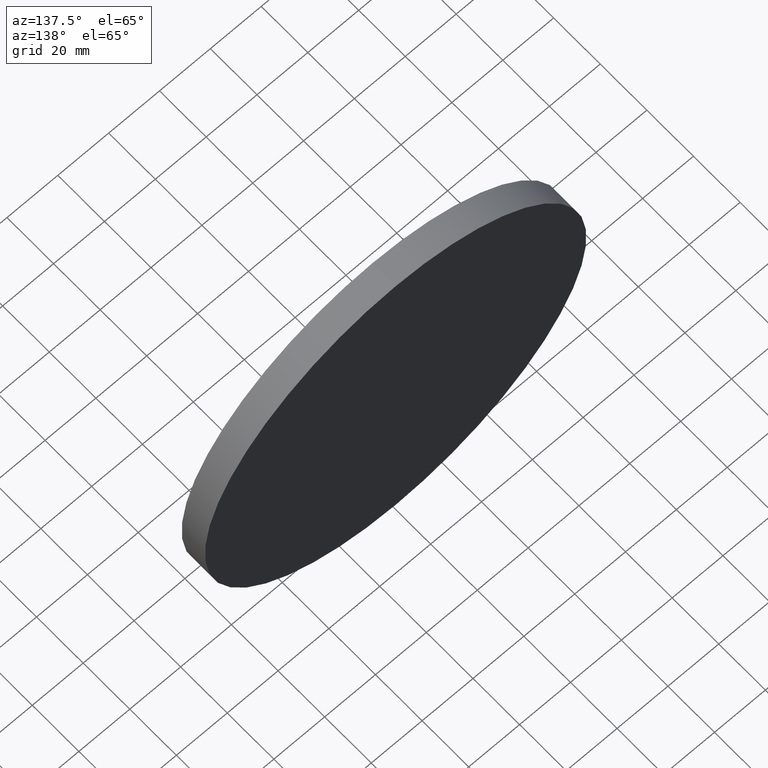
[diagram: clean part render]
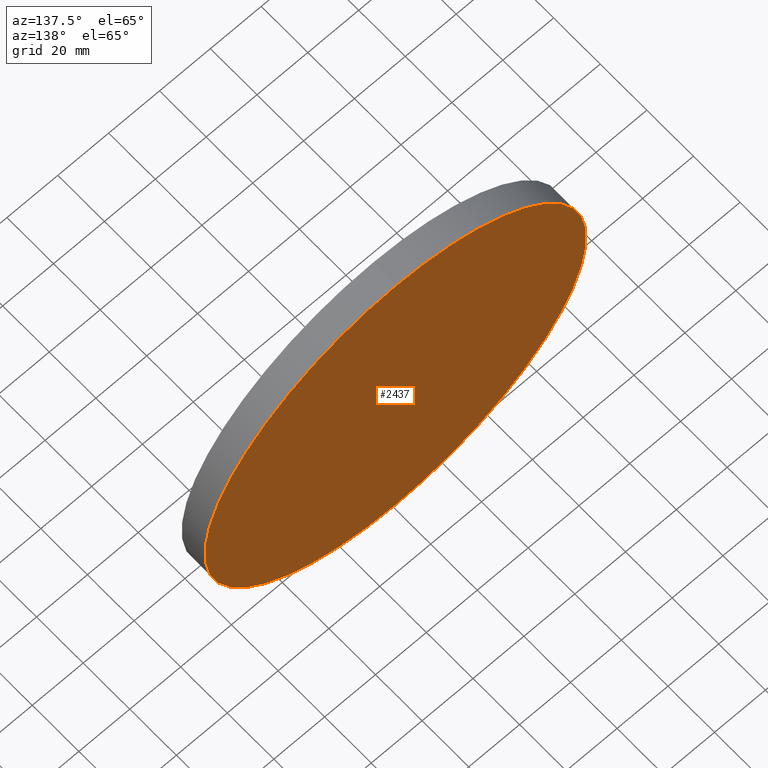
[diagram: same view with one face highlighted and labeled with its STEP entity id]
A machine part, auxiliary view. The second image highlights one B-rep face of the part: STEP entity #2437.
In plain terms, the highlighted planar face has unit normal (0, 1, 0).
Its self-contained STEP definition (entity closure, byte-faithful):
#82 = FACE_OUTER_BOUND ( 'NONE', #853, .T. ) ;
#540 = DIRECTION ( 'NONE',  ( 0.000000000000000000, 1.000000000000000000, 0.000000000000000000 ) ) ;
#726 = CARTESIAN_POINT ( 'NONE',  ( 0.000000000000000000, 5.000000000000000000, 0.000000000000000000 ) ) ;
#853 = EDGE_LOOP ( 'NONE', ( #1198 ) ) ;
#1198 = ORIENTED_EDGE ( 'NONE', *, *, #13330, .T. ) ;
#2192 = CIRCLE ( 'NONE', #8201, 75.00000000000001421 ) ;
#2437 = ADVANCED_FACE ( 'NONE', ( #82 ), #7070, .T. ) ;
#2796 = CARTESIAN_POINT ( 'NONE',  ( 0.000000000000000000, 5.000000000000000000, 0.000000000000000000 ) ) ;
#3783 = DIRECTION ( 'NONE',  ( 0.000000000000000000, 1.000000000000000000, 0.000000000000000000 ) ) ;
#7070 = PLANE ( 'NONE',  #11050 ) ;
#7732 = CARTESIAN_POINT ( 'NONE',  ( 0.000000000000000000, 5.000000000000000000, 75.00000000000001421 ) ) ;
#8113 = DIRECTION ( 'NONE',  ( 0.000000000000000000, -0.000000000000000000, 1.000000000000000000 ) ) ;
#8201 = AXIS2_PLACEMENT_3D ( 'NONE', #2796, #3783, #11351 ) ;
#8261 = VERTEX_POINT ( 'NONE', #7732 ) ;
#11050 = AXIS2_PLACEMENT_3D ( 'NONE', #726, #540, #8113 ) ;
#11351 = DIRECTION ( 'NONE',  ( 0.000000000000000000, 0.000000000000000000, 1.000000000000000000 ) ) ;
#13330 = EDGE_CURVE ( 'NONE', #8261, #8261, #2192, .T. ) ;